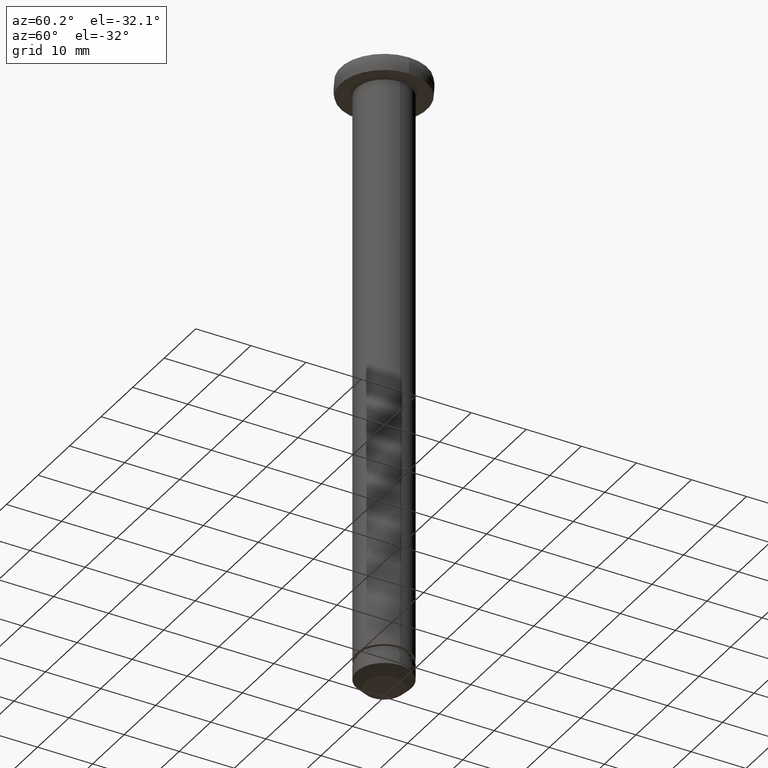
[diagram: clean part render]
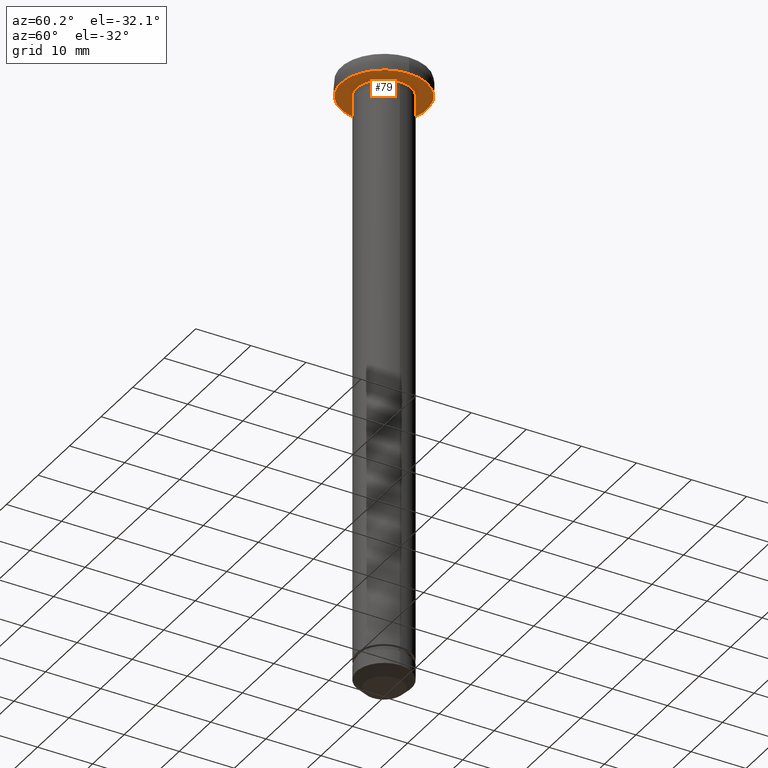
[diagram: same view with one face highlighted and labeled with its STEP entity id]
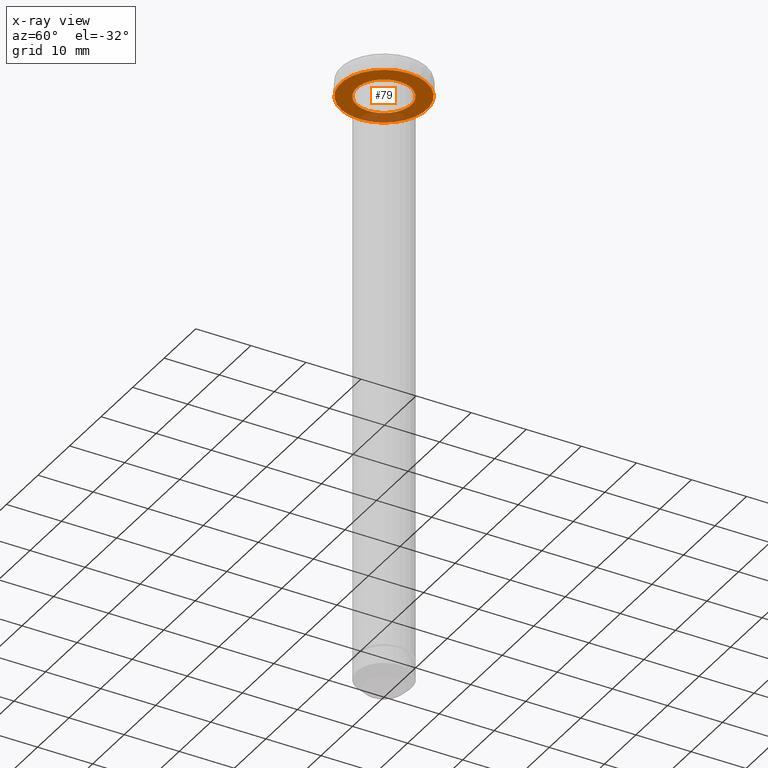
[diagram: x-ray of the same camera — body ghosted, the highlighted face saturated]
A machine part, auxiliary view. The second image highlights one B-rep face of the part: STEP entity #79.
The next image is the same camera in x-ray: the body ghosted, the highlighted face saturated — about 16% of this face is hidden behind the body in this view.
In plain terms, the highlighted planar face has unit normal (0, 0, -1).
Its self-contained STEP definition (entity closure, byte-faithful):
#19 = ORIENTED_EDGE ( 'NONE', *, *, #77, .T. ) ;
#21 = PLANE ( 'NONE',  #150 ) ;
#28 = DIRECTION ( 'NONE',  ( 0.0000000000000000000, 0.0000000000000000000, -1.000000000000000000 ) ) ;
#29 = ORIENTED_EDGE ( 'NONE', *, *, #420, .F. ) ;
#54 = DIRECTION ( 'NONE',  ( -1.000000000000000000, 0.0000000000000000000, 0.0000000000000000000 ) ) ;
#73 = CIRCLE ( 'NONE', #125, 7.828427118366799500 ) ;
#77 = EDGE_CURVE ( 'NONE', #262, #151, #73, .T. ) ;
#79 = ADVANCED_FACE ( 'NONE', ( #387, #397 ), #21, .T. ) ;
#81 = VERTEX_POINT ( 'NONE', #373 ) ;
#86 = CIRCLE ( 'NONE', #244, 5.000000000000000000 ) ;
#106 = CIRCLE ( 'NONE', #197, 5.000000000000000000 ) ;
#115 = EDGE_LOOP ( 'NONE', ( #29, #371 ) ) ;
#125 = AXIS2_PLACEMENT_3D ( 'NONE', #280, #191, #210 ) ;
#135 = CARTESIAN_POINT ( 'NONE',  ( 0.0000000000000000000, 0.0000000000000000000, -3.000000018043495100 ) ) ;
#145 = ORIENTED_EDGE ( 'NONE', *, *, #188, .T. ) ;
#150 = AXIS2_PLACEMENT_3D ( 'NONE', #241, #220, #297 ) ;
#151 = VERTEX_POINT ( 'NONE', #221 ) ;
#155 = EDGE_LOOP ( 'NONE', ( #19, #145 ) ) ;
#176 = DIRECTION ( 'NONE',  ( 0.0000000000000000000, 0.0000000000000000000, -1.000000000000000000 ) ) ;
#181 = CARTESIAN_POINT ( 'NONE',  ( 0.0000000000000000000, 0.0000000000000000000, -3.000000018043520000 ) ) ;
#188 = EDGE_CURVE ( 'NONE', #151, #262, #330, .T. ) ;
#191 = DIRECTION ( 'NONE',  ( 0.0000000000000000000, 0.0000000000000000000, -1.000000000000000000 ) ) ;
#197 = AXIS2_PLACEMENT_3D ( 'NONE', #430, #28, #54 ) ;
#200 = VERTEX_POINT ( 'NONE', #351 ) ;
#206 = DIRECTION ( 'NONE',  ( 0.0000000000000000000, 0.0000000000000000000, -1.000000000000000000 ) ) ;
#210 = DIRECTION ( 'NONE',  ( -1.000000000000000000, 0.0000000000000000000, 0.0000000000000000000 ) ) ;
#220 = DIRECTION ( 'NONE',  ( 0.0000000000000000000, 0.0000000000000000000, -1.000000000000000000 ) ) ;
#221 = CARTESIAN_POINT ( 'NONE',  ( 7.828427118366799500, 9.587058212866239700E-016, -3.000000018043520000 ) ) ;
#241 = CARTESIAN_POINT ( 'NONE',  ( 5.000000000000000000, 0.0000000000000000000, -3.000000018043507600 ) ) ;
#244 = AXIS2_PLACEMENT_3D ( 'NONE', #135, #176, #317 ) ;
#253 = AXIS2_PLACEMENT_3D ( 'NONE', #181, #206, #314 ) ;
#262 = VERTEX_POINT ( 'NONE', #336 ) ;
#280 = CARTESIAN_POINT ( 'NONE',  ( 0.0000000000000000000, 0.0000000000000000000, -3.000000018043520000 ) ) ;
#297 = DIRECTION ( 'NONE',  ( -1.000000000000000000, 0.0000000000000000000, -0.0000000000000000000 ) ) ;
#314 = DIRECTION ( 'NONE',  ( -1.000000000000000000, 0.0000000000000000000, 0.0000000000000000000 ) ) ;
#317 = DIRECTION ( 'NONE',  ( -1.000000000000000000, 0.0000000000000000000, 0.0000000000000000000 ) ) ;
#330 = CIRCLE ( 'NONE', #253, 7.828427118366799500 ) ;
#336 = CARTESIAN_POINT ( 'NONE',  ( -7.828427118366799500, 0.0000000000000000000, -3.000000018043520000 ) ) ;
#351 = CARTESIAN_POINT ( 'NONE',  ( -5.000000000000000000, 0.0000000000000000000, -3.000000018043495100 ) ) ;
#371 = ORIENTED_EDGE ( 'NONE', *, *, #409, .F. ) ;
#373 = CARTESIAN_POINT ( 'NONE',  ( 5.000000000000000000, 6.123233995736766300E-016, -3.000000018043495100 ) ) ;
#387 = FACE_OUTER_BOUND ( 'NONE', #155, .T. ) ;
#397 = FACE_BOUND ( 'NONE', #115, .T. ) ;
#409 = EDGE_CURVE ( 'NONE', #81, #200, #106, .T. ) ;
#420 = EDGE_CURVE ( 'NONE', #200, #81, #86, .T. ) ;
#430 = CARTESIAN_POINT ( 'NONE',  ( 0.0000000000000000000, 0.0000000000000000000, -3.000000018043495100 ) ) ;